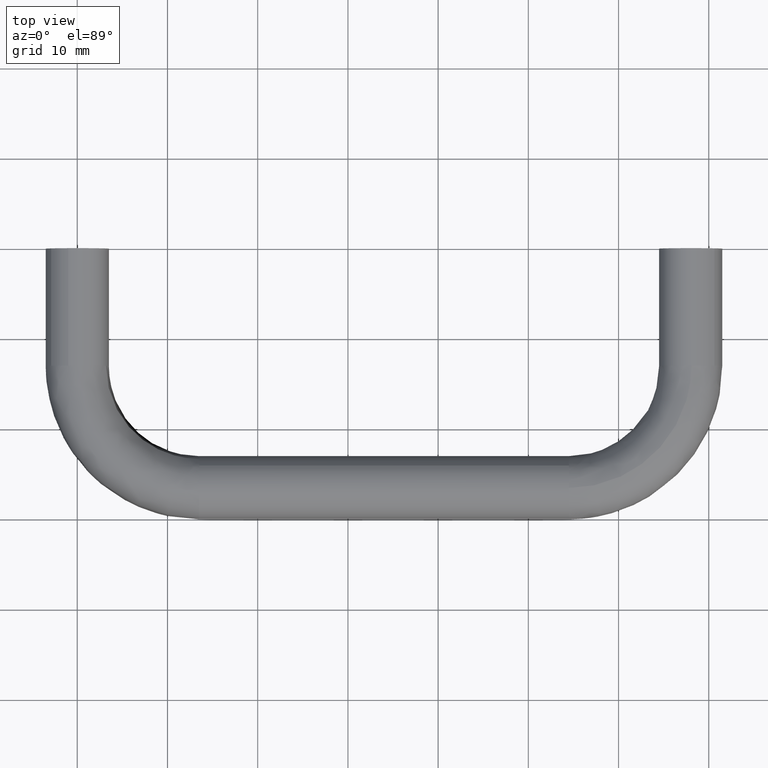
[diagram: clean part render]
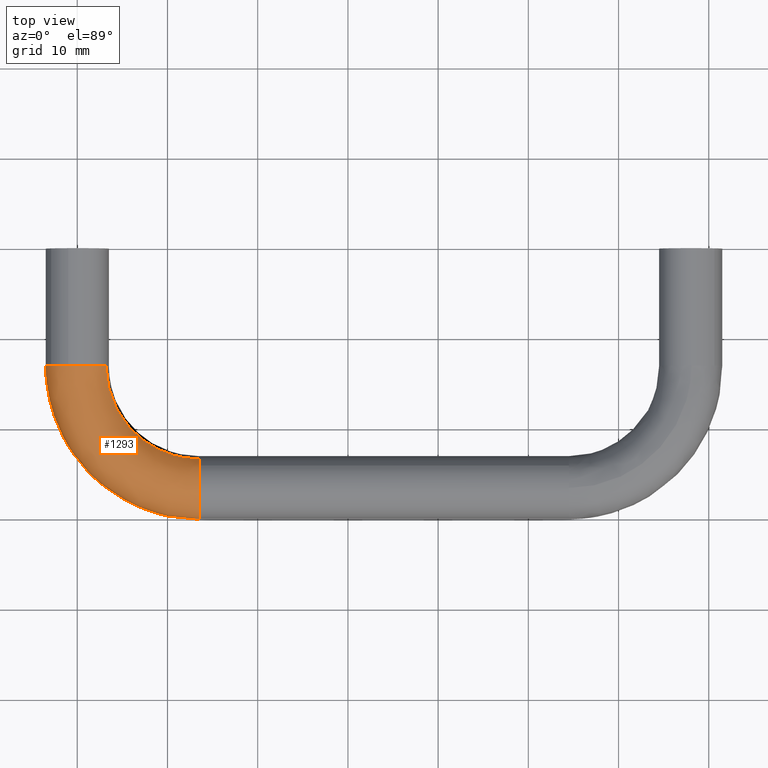
[diagram: same view with one face highlighted and labeled with its STEP entity id]
A machine part, top view. The second image highlights one B-rep face of the part: STEP entity #1293.
In plain terms, the highlighted face is a freeform B-spline surface patch.
Its self-contained STEP definition (entity closure, byte-faithful):
#681=CARTESIAN_POINT('',(13.500000000029130,-24.078439724854910,2.527062688919497));
#682=VERTEX_POINT('',#681);
#688=CARTESIAN_POINT('',(13.500000000000000,-30.0,0.0));
#689=VERTEX_POINT('',#688);
#690=CARTESIAN_POINT('',(13.500000000000000,-30.0,0.0));
#691=CARTESIAN_POINT('',(13.500000000000000,-29.999999999999993,3.500000000000000));
#692=CARTESIAN_POINT('',(13.500000000000000,-26.500000000000000,3.500000000000000));
#693=CARTESIAN_POINT('',(13.500000000000004,-25.093765969365496,3.500000000000000));
#694=CARTESIAN_POINT('',(13.500000000029130,-24.078439724854906,2.527062688919497));
#702=(BOUNDED_CURVE()B_SPLINE_CURVE(2,(#690,#691,#692,#693,#694),.UNSPECIFIED.,.F.,.U.)B_SPLINE_CURVE_WITH_KNOTS((3,2,3),(0.500000000000000,0.750000000000000,0.871783490050663),.UNSPECIFIED.)CURVE()GEOMETRIC_REPRESENTATION_ITEM()RATIONAL_B_SPLINE_CURVE((1.0,0.707106781186547,1.0,0.857321766402901,0.853650358739550))REPRESENTATION_ITEM(''));
#703=EDGE_CURVE('',#689,#682,#702,.T.);
#705=CARTESIAN_POINT('',(13.500000000000000,-28.773066939401790,-2.661421929908141));
#706=VERTEX_POINT('',#705);
#707=CARTESIAN_POINT('',(13.499999999999996,-28.773066939401783,-2.661421929908142));
#708=CARTESIAN_POINT('',(13.499999999999996,-29.999999999999993,-1.613523080964714));
#709=CARTESIAN_POINT('',(13.500000000000000,-30.0,0.0));
#717=(BOUNDED_CURVE()B_SPLINE_CURVE(2,(#707,#708,#709),.UNSPECIFIED.,.F.,.U.)B_SPLINE_CURVE_WITH_KNOTS((3,3),(0.363143091521298,0.500000000000000),.UNSPECIFIED.)CURVE()GEOMETRIC_REPRESENTATION_ITEM()RATIONAL_B_SPLINE_CURVE((0.854871047159077,0.839662158235259,1.0))REPRESENTATION_ITEM(''));
#718=EDGE_CURVE('',#706,#689,#717,.T.);
#822=CARTESIAN_POINT('',(13.500000000095170,-25.234238042859719,-3.263103839576120));
#823=VERTEX_POINT('',#822);
#824=CARTESIAN_POINT('',(13.500000000095167,-25.234238042859719,-3.263103839576120));
#825=CARTESIAN_POINT('',(13.499999999999998,-25.844950638675016,-3.500000000000000));
#826=CARTESIAN_POINT('',(13.500000000000000,-26.500000000000000,-3.500000000000000));
#827=CARTESIAN_POINT('',(13.500000000000002,-27.791217251214174,-3.500000000000000));
#828=CARTESIAN_POINT('',(13.499999999999996,-28.773066939401783,-2.661421929908142));
#836=(BOUNDED_CURVE()B_SPLINE_CURVE(2,(#824,#825,#826,#827,#828),.UNSPECIFIED.,.F.,.U.)B_SPLINE_CURVE_WITH_KNOTS((3,2,3),(0.188590655692032,0.250000000000000,0.363143091521298),.UNSPECIFIED.)CURVE()GEOMETRIC_REPRESENTATION_ITEM()RATIONAL_B_SPLINE_CURVE((0.891453974537126,0.928054477921662,1.0,0.867444622951288,0.854871047159077))REPRESENTATION_ITEM(''));
#837=EDGE_CURVE('',#823,#706,#836,.T.);
#854=CARTESIAN_POINT('',(13.500000000061361,-23.314629102676701,1.450314533639424));
#855=VERTEX_POINT('',#854);
#869=CARTESIAN_POINT('',(13.500000000029132,-24.078439724854910,2.527062688919497));
#870=CARTESIAN_POINT('',(13.500000000043052,-23.593145737844154,2.062029277844743));
#871=CARTESIAN_POINT('',(13.500000000061355,-23.314629102676697,1.450314533639424));
#879=(BOUNDED_CURVE()B_SPLINE_CURVE(2,(#869,#870,#871),.UNSPECIFIED.,.F.,.U.)B_SPLINE_CURVE_WITH_KNOTS((3,3),(0.871783490050663,0.929624510025988),.UNSPECIFIED.)CURVE()GEOMETRIC_REPRESENTATION_ITEM()RATIONAL_B_SPLINE_CURVE((0.853650358739550,0.851906625135717,0.881519651436128))REPRESENTATION_ITEM(''));
#880=EDGE_CURVE('',#682,#855,#879,.T.);
#912=CARTESIAN_POINT('',(-3.499999999999998,-13.0,0.0));
#913=VERTEX_POINT('',#912);
#914=CARTESIAN_POINT('',(-2.895085452633775,-13.0,1.966845246059861));
#915=VERTEX_POINT('',#914);
#916=CARTESIAN_POINT('',(-3.499999999999998,-13.0,0.0));
#917=CARTESIAN_POINT('',(-3.499999999999999,-13.000000000000007,1.076445094004155));
#918=CARTESIAN_POINT('',(-2.895085452633775,-13.000000000000005,1.966845246059860));
#926=(BOUNDED_CURVE()B_SPLINE_CURVE(2,(#916,#917,#918),.UNSPECIFIED.,.F.,.U.)B_SPLINE_CURVE_WITH_KNOTS((3,3),(0.500000000000000,0.596450219094872),.UNSPECIFIED.)CURVE()GEOMETRIC_REPRESENTATION_ITEM()RATIONAL_B_SPLINE_CURVE((1.0,0.887001539496160,0.861192889176150))REPRESENTATION_ITEM(''));
#927=EDGE_CURVE('',#913,#915,#926,.T.);
#985=CARTESIAN_POINT('',(-0.994053706532479,-13.0,3.355869072018310));
#986=VERTEX_POINT('',#985);
#992=CARTESIAN_POINT('',(3.185370897351431,-13.000000000036000,1.450314533577650));
#993=VERTEX_POINT('',#992);
#994=CARTESIAN_POINT('',(-0.994053706532479,-13.000000000000002,3.355869072018310));
#995=CARTESIAN_POINT('',(-0.507475848293934,-13.000000000000004,3.500000000000000));
#996=CARTESIAN_POINT('',(1.591988E-015,-13.0,3.500000000000000));
#997=CARTESIAN_POINT('',(2.252139346847461,-12.999999999999995,3.500000000000000));
#998=CARTESIAN_POINT('',(3.185370897351430,-13.000000000036005,1.450314533577651));
#1006=(BOUNDED_CURVE()B_SPLINE_CURVE(2,(#994,#995,#996,#997,#998),.UNSPECIFIED.,.F.,.U.)B_SPLINE_CURVE_WITH_KNOTS((3,2,3),(0.701641517058892,0.750000000000000,0.929624510032032),.UNSPECIFIED.)CURVE()GEOMETRIC_REPRESENTATION_ITEM()RATIONAL_B_SPLINE_CURVE((0.908607213370599,0.943344513097774,1.0,0.789556796315716,0.881519651442316))REPRESENTATION_ITEM(''));
#1007=EDGE_CURVE('',#986,#993,#1006,.T.);
#1024=CARTESIAN_POINT('',(1.265761957616278,-13.000000000306891,-3.263103839391479));
#1025=VERTEX_POINT('',#1024);
#1039=CARTESIAN_POINT('',(1.265761957616278,-13.000000000306889,-3.263103839391479));
#1040=CARTESIAN_POINT('',(0.655049361853420,-12.999999999999996,-3.500000000000000));
#1041=CARTESIAN_POINT('',(1.591988E-015,-13.0,-3.500000000000000));
#1042=CARTESIAN_POINT('',(-3.499999999999998,-13.0,-3.500000000000000));
#1043=CARTESIAN_POINT('',(-3.499999999999998,-13.0,0.0));
#1051=(BOUNDED_CURVE()B_SPLINE_CURVE(2,(#1039,#1040,#1041,#1042,#1043),.UNSPECIFIED.,.F.,.U.)B_SPLINE_CURVE_WITH_KNOTS((3,2,3),(0.188590655646056,0.250000000000000,0.500000000000000),.UNSPECIFIED.)CURVE()GEOMETRIC_REPRESENTATION_ITEM()RATIONAL_B_SPLINE_CURVE((0.891453974482322,0.928054477867799,1.0,0.707106781186547,1.0))REPRESENTATION_ITEM(''));
#1052=EDGE_CURVE('',#1025,#913,#1051,.T.);
#1071=CARTESIAN_POINT('',(-2.895085452633776,-13.000000000000002,1.966845246059861));
#1072=CARTESIAN_POINT('',(-2.192617683582059,-12.999999999999993,3.000838247387388));
#1073=CARTESIAN_POINT('',(-0.994053706532479,-13.000000000000004,3.355869072018310));
#1081=(BOUNDED_CURVE()B_SPLINE_CURVE(2,(#1071,#1072,#1073),.UNSPECIFIED.,.F.,.U.)B_SPLINE_CURVE_WITH_KNOTS((3,3),(0.596450219094872,0.701641517058892),.UNSPECIFIED.)CURVE()GEOMETRIC_REPRESENTATION_ITEM()RATIONAL_B_SPLINE_CURVE((0.861192889176150,0.833045255595442,0.908607213370600))REPRESENTATION_ITEM(''));
#1082=EDGE_CURVE('',#915,#986,#1081,.T.);
#1200=CARTESIAN_POINT('',(1.372142126533648,-12.093489282745542,-3.234962279574235));
#1201=CARTESIAN_POINT('',(0.578626179659938,-22.709633627029184,-3.234962279574234));
#1202=CARTESIAN_POINT('',(10.996362815054674,-24.901197382013965,-3.234962279574235));
#1203=CARTESIAN_POINT('',(12.700547338708187,-25.259704144524722,-3.234962279574235));
#1204=CARTESIAN_POINT('',(14.436858086651728,-25.125551336123745,-3.234962279574236));
#1205=CARTESIAN_POINT('',(1.336122792969793,-12.090796976136687,-3.248973199140861));
#1206=CARTESIAN_POINT('',(0.540250130188220,-22.738470915200242,-3.248973199140859));
#1207=CARTESIAN_POINT('',(10.988927096082019,-24.936543541474641,-3.248973199140860));
#1208=CARTESIAN_POINT('',(12.698172990956426,-25.296115057118104,-3.248973199140861));
#1209=CARTESIAN_POINT('',(14.439640523935969,-25.161563819348594,-3.248973199140861));
#1210=CARTESIAN_POINT('',(-1.773155342862608,-11.858390397624282,-4.458430497793631));
#1211=CARTESIAN_POINT('',(-2.772465563190651,-25.227777094283638,-4.458430497793630));
#1212=CARTESIAN_POINT('',(10.347057407269235,-27.987711620470737,-4.458430497793631));
#1213=CARTESIAN_POINT('',(12.493213408949288,-28.439195265185354,-4.458430497793631));
#1214=CARTESIAN_POINT('',(14.679827405708139,-28.270250616941073,-4.458430497793631));
#1215=CARTESIAN_POINT('',(-3.138954823523252,-11.756302141004111,-1.450314533476495));
#1216=CARTESIAN_POINT('',(-4.227628200926809,-26.321244110764372,-1.450314533476494));
#1217=CARTESIAN_POINT('',(10.065106018768700,-29.327985341781140,-1.450314533476495));
#1218=CARTESIAN_POINT('',(12.403181678614288,-29.819842839418435,-1.450314533476495));
#1219=CARTESIAN_POINT('',(14.785333283296060,-29.635790342949441,-1.450314533476495));
#1220=CARTESIAN_POINT('',(-4.585234810393583,-11.648198276172630,1.735056363920989));
#1221=CARTESIAN_POINT('',(-5.768537119402344,-27.479144289108216,1.735056363920988));
#1222=CARTESIAN_POINT('',(9.766540485370353,-30.747235449506935,1.735056363920988));
#1223=CARTESIAN_POINT('',(12.307844777692470,-31.281845852165613,1.735056363920989));
#1224=CARTESIAN_POINT('',(14.897056154342106,-31.081795268977842,1.735056363920989));
#1225=CARTESIAN_POINT('',(-1.408725113133609,-11.885630155245755,3.185370897397484));
#1226=CARTESIAN_POINT('',(-2.384190957824183,-24.936012130495246,3.185370897397484));
#1227=CARTESIAN_POINT('',(10.422289248208260,-27.630092316119669,3.185370897397483));
#1228=CARTESIAN_POINT('',(12.517236177030165,-28.070803184373329,3.185370897397484));
#1229=CARTESIAN_POINT('',(14.651675739411909,-27.905889696396130,3.185370897397484));
#1230=CARTESIAN_POINT('',(1.767784584126368,-12.123062034318874,4.635685430873975));
#1231=CARTESIAN_POINT('',(1.000155203753987,-22.392879971882277,4.635685430873976));
#1232=CARTESIAN_POINT('',(11.078038011046162,-24.512949182732402,4.635685430873977));
#1233=CARTESIAN_POINT('',(12.726627576367848,-24.859760516581041,4.635685430873977));
#1234=CARTESIAN_POINT('',(14.406295324481711,-24.729984123814422,4.635685430873977));
#1235=CARTESIAN_POINT('',(3.229409311147556,-12.232312859441723,1.416518388090808));
#1236=CARTESIAN_POINT('',(2.557412856336887,-21.222694705230062,1.416518388090808));
#1237=CARTESIAN_POINT('',(11.379771264781912,-23.078641116444043,1.416518388090808));
#1238=CARTESIAN_POINT('',(12.822975982658413,-23.382245945536688,1.416518388090809));
#1239=CARTESIAN_POINT('',(14.293387096215305,-23.268637375975462,1.416518388090809));
#1240=CARTESIAN_POINT('',(3.244619769673343,-12.233449782698234,1.383017992341739));
#1241=CARTESIAN_POINT('',(2.573618522880893,-21.210517123572579,1.383017992341739));
#1242=CARTESIAN_POINT('',(11.382911264439112,-23.063714929884551,1.383017992341739));
#1243=CARTESIAN_POINT('',(12.823978636356596,-23.366870128688056,1.383017992341739));
#1244=CARTESIAN_POINT('',(14.292212112040829,-23.253429810251593,1.383017992341739));
#1252=(BOUNDED_SURFACE()B_SPLINE_SURFACE(2,2,((#1200,#1205,#1210,#1215,#1220,#1225,#1230,#1235,#1240),(#1201,#1206,#1211,#1216,#1221,#1226,#1231,#1236,#1241),(#1202,#1207,#1212,#1217,#1222,#1227,#1232,#1237,#1242),(#1203,#1208,#1213,#1218,#1223,#1228,#1233,#1238,#1243),(#1204,#1209,#1214,#1219,#1224,#1229,#1234,#1239,#1244)),.UNSPECIFIED.,.F.,.F.,.U.)B_SPLINE_SURFACE_WITH_KNOTS((3,2,3),(3,1,2,2,1,3),(0.0,25.221434855611449,30.500784203888699),(0.0,0.089876889696219,5.656907167990622,11.455897041213960,17.254886914437289,17.342282062009058),.UNSPECIFIED.)GEOMETRIC_REPRESENTATION_ITEM()RATIONAL_B_SPLINE_SURFACE(((0.950358900964939,0.946332973703877,0.692938615511372,0.963991257828157,0.681644755414839,0.963991257828157,0.681644755414839,0.968246432398943,0.972501606969729),(0.728326493512661,0.725241143880844,0.531047324902716,0.738773922018271,0.522392050022901,0.738773922018271,0.522392050022901,0.742034959896990,0.745295997775710),(0.985858422726850,0.981682111760988,0.718822509939086,1.0,0.707106781186548,1.0,0.707106781186548,1.004414121535057,1.008828243070114),(0.931951853554992,0.928003902555202,0.679517418598343,0.945320171812547,0.668442303881085,0.945320171812547,0.668442303881085,0.949492929940469,0.953665688068390),(0.899057318696237,0.895248716109444,0.655532907673289,0.911953783596509,0.644848704509821,0.911953783596509,0.644848704509821,0.915979258431659,0.920004733266809)))REPRESENTATION_ITEM('')SURFACE());
#1253=ORIENTED_EDGE('',*,*,#837,.T.);
#1254=ORIENTED_EDGE('',*,*,#718,.T.);
#1255=ORIENTED_EDGE('',*,*,#703,.T.);
#1256=ORIENTED_EDGE('',*,*,#880,.T.);
#1257=CARTESIAN_POINT('',(3.185370897351431,-13.000000000036005,1.450314533577650));
#1258=CARTESIAN_POINT('',(3.185370897455925,-21.370521651150753,1.450314533476495));
#1259=CARTESIAN_POINT('',(11.376603544444510,-23.093699075006601,1.450314533476494));
#1260=CARTESIAN_POINT('',(12.426808375238373,-23.314629102615278,1.450314533476495));
#1261=CARTESIAN_POINT('',(13.500000000061359,-23.314629102676697,1.450314533639424));
#1269=(BOUNDED_CURVE()B_SPLINE_CURVE(2,(#1257,#1258,#1259,#1260,#1261),.UNSPECIFIED.,.F.,.U.)B_SPLINE_CURVE_WITH_KNOTS((3,2,3),(-3.759886875716464,-2.0,-1.712481691721683),.UNSPECIFIED.)CURVE()GEOMETRIC_REPRESENTATION_ITEM()RATIONAL_B_SPLINE_CURVE((0.940720929714544,0.753120240876726,1.0,0.959666469663066,0.930929567735499))REPRESENTATION_ITEM(''));
#1270=EDGE_CURVE('',#993,#855,#1269,.T.);
#1271=ORIENTED_EDGE('',*,*,#1270,.F.);
#1272=ORIENTED_EDGE('',*,*,#1007,.F.);
#1273=ORIENTED_EDGE('',*,*,#1082,.F.);
#1274=ORIENTED_EDGE('',*,*,#927,.F.);
#1275=ORIENTED_EDGE('',*,*,#1052,.F.);
#1276=CARTESIAN_POINT('',(1.265761957616278,-13.000000000306887,-3.263103839391479));
#1277=CARTESIAN_POINT('',(1.265761957452467,-22.928321552515879,-3.263103839648232));
#1278=CARTESIAN_POINT('',(10.981427840146894,-24.972191727896671,-3.263103839648231));
#1279=CARTESIAN_POINT('',(12.227081539015725,-25.234238043065425,-3.263103839648230));
#1280=CARTESIAN_POINT('',(13.500000000095163,-25.234238042859715,-3.263103839576120));
#1288=(BOUNDED_CURVE()B_SPLINE_CURVE(2,(#1276,#1277,#1278,#1279,#1280),.UNSPECIFIED.,.F.,.U.)B_SPLINE_CURVE_WITH_KNOTS((3,2,3),(-3.759886875657970,-2.0,-1.712481691716782),.UNSPECIFIED.)CURVE()GEOMETRIC_REPRESENTATION_ITEM()RATIONAL_B_SPLINE_CURVE((0.919560165713161,0.736179404161244,0.977505800795127,0.938079540923555,0.909989052592193))REPRESENTATION_ITEM(''));
#1289=EDGE_CURVE('',#1025,#823,#1288,.T.);
#1290=ORIENTED_EDGE('',*,*,#1289,.T.);
#1291=EDGE_LOOP('',(#1253,#1254,#1255,#1256,#1271,#1272,#1273,#1274,#1275,#1290));
#1292=FACE_OUTER_BOUND('',#1291,.T.);
#1293=ADVANCED_FACE('',(#1292),#1252,.T.);